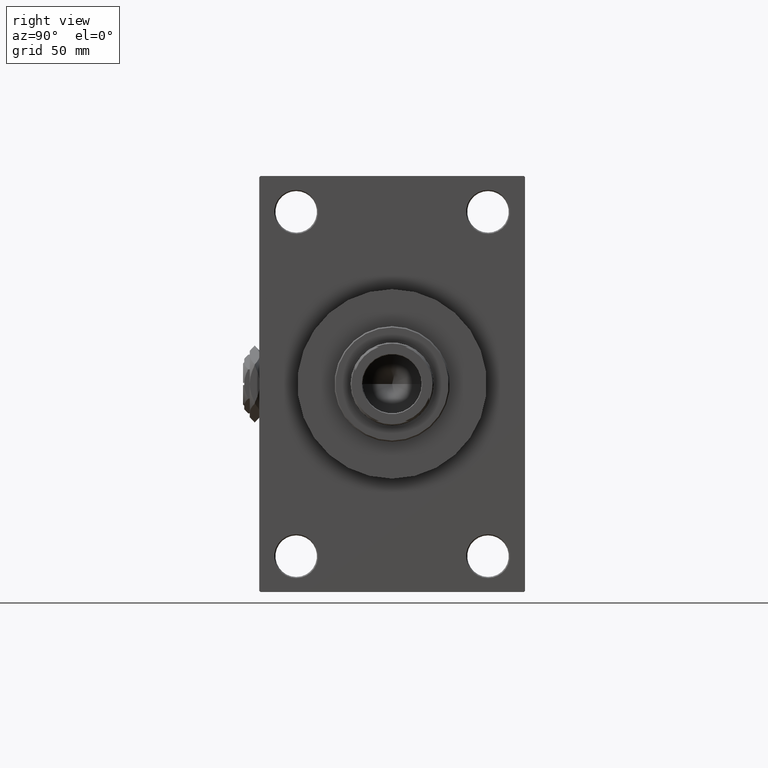
[diagram: clean part render]
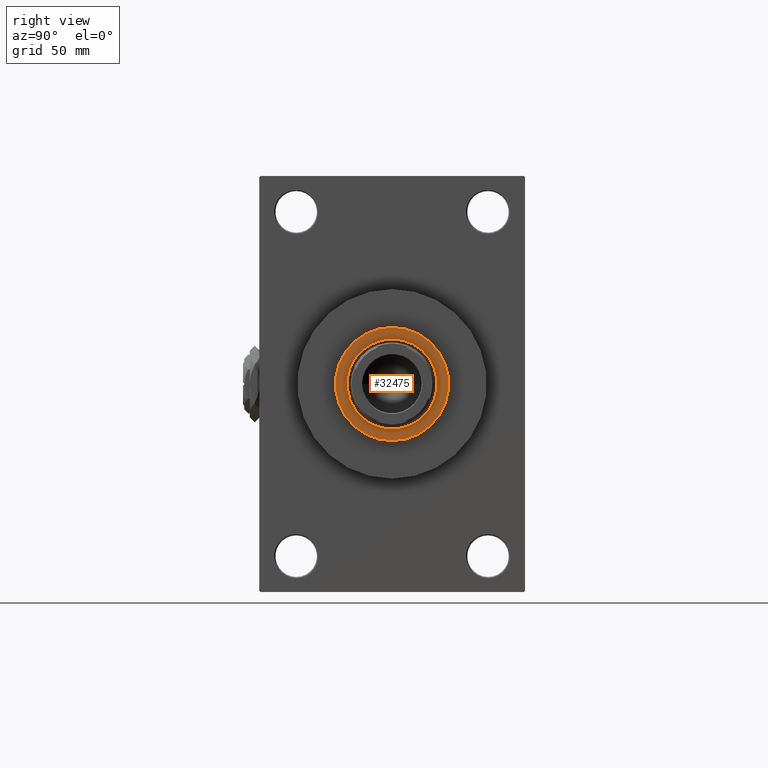
[diagram: same view with one face highlighted and labeled with its STEP entity id]
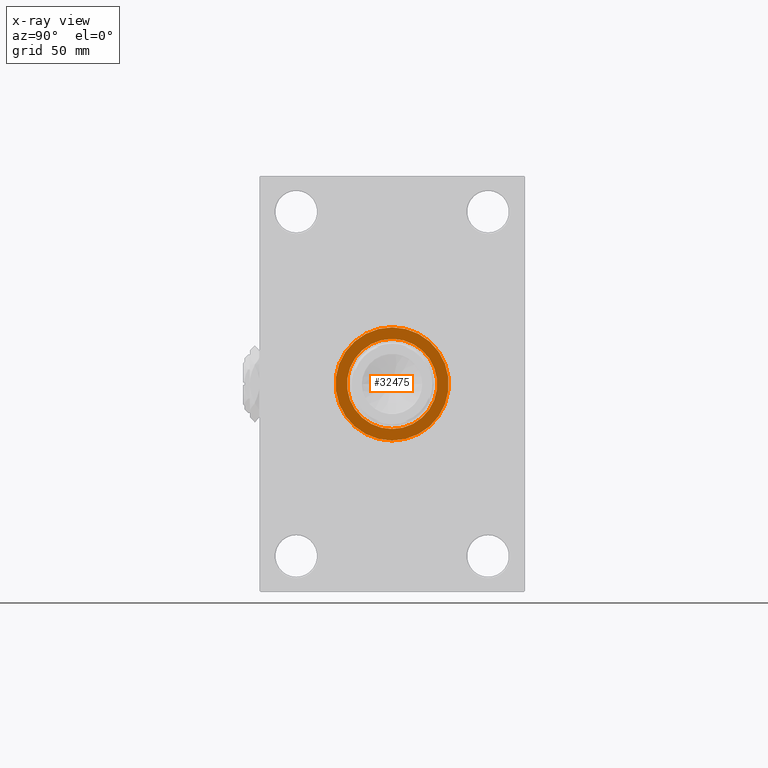
[diagram: x-ray of the same camera — body ghosted, the highlighted face saturated]
A machine part, right view. The second image highlights one B-rep face of the part: STEP entity #32475.
The next image is the same camera in x-ray: the body ghosted, the highlighted face saturated — about 0% of this face is hidden behind the body in this view.
In plain terms, the highlighted planar face has unit normal (1, -0, -0).
Its self-contained STEP definition (entity closure, byte-faithful):
#226 = EDGE_LOOP ( 'NONE', ( #5913, #16296 ) ) ;
#394 = DIRECTION ( 'NONE',  ( 0.000000000000000000, 0.000000000000000000, 1.000000000000000000 ) ) ;
#5913 = ORIENTED_EDGE ( 'NONE', *, *, #21664, .F. ) ;
#7606 = AXIS2_PLACEMENT_3D ( 'NONE', #37540, #36803, #10763 ) ;
#9124 = CARTESIAN_POINT ( 'NONE',  ( 0.000000000000000000, 0.000000000000000000, 52.25999999999999801 ) ) ;
#10434 = VERTEX_POINT ( 'NONE', #32083 ) ;
#10763 = DIRECTION ( 'NONE',  ( 1.000000000000000000, 0.000000000000000000, 0.000000000000000000 ) ) ;
#10957 = DIRECTION ( 'NONE',  ( 0.000000000000000000, 0.000000000000000000, 1.000000000000000000 ) ) ;
#13027 = FACE_BOUND ( 'NONE', #226, .T. ) ;
#13768 = AXIS2_PLACEMENT_3D ( 'NONE', #25258, #36052, #28284 ) ;
#15487 = VERTEX_POINT ( 'NONE', #18122 ) ;
#16296 = ORIENTED_EDGE ( 'NONE', *, *, #31175, .F. ) ;
#18122 = CARTESIAN_POINT ( 'NONE',  ( -24.49999999999998224, 0.000000000000000000, 52.25999999999999801 ) ) ;
#18584 = CARTESIAN_POINT ( 'NONE',  ( 19.50000000000000000, 0.000000000000000000, 52.25999999999999801 ) ) ;
#19106 = CARTESIAN_POINT ( 'NONE',  ( 24.49999999999998224, 3.031000827889698072E-15, 52.25999999999999801 ) ) ;
#19187 = CARTESIAN_POINT ( 'NONE',  ( 0.000000000000000000, 0.000000000000000000, 52.25999999999999801 ) ) ;
#19658 = VERTEX_POINT ( 'NONE', #18584 ) ;
#21015 = PLANE ( 'NONE',  #13768 ) ;
#21664 = EDGE_CURVE ( 'NONE', #19658, #10434, #31916, .T. ) ;
#23284 = AXIS2_PLACEMENT_3D ( 'NONE', #19187, #10957, #34467 ) ;
#25258 = CARTESIAN_POINT ( 'NONE',  ( 0.000000000000000000, 0.000000000000000000, 52.25999999999999801 ) ) ;
#25508 = AXIS2_PLACEMENT_3D ( 'NONE', #48818, #36599, #33570 ) ;
#28241 = ORIENTED_EDGE ( 'NONE', *, *, #34011, .T. ) ;
#28284 = DIRECTION ( 'NONE',  ( 1.000000000000000000, 0.000000000000000000, -0.000000000000000000 ) ) ;
#29193 = CIRCLE ( 'NONE', #7606, 24.49999999999998224 ) ;
#29680 = CIRCLE ( 'NONE', #48865, 19.50000000000000000 ) ;
#31175 = EDGE_CURVE ( 'NONE', #10434, #19658, #29680, .T. ) ;
#31916 = CIRCLE ( 'NONE', #25508, 19.50000000000000000 ) ;
#32083 = CARTESIAN_POINT ( 'NONE',  ( -19.50000000000000000, 2.388061258337338939E-15, 52.25999999999999801 ) ) ;
#32475 = ADVANCED_FACE ( 'NONE', ( #13027, #47793 ), #21015, .T. ) ;
#33570 = DIRECTION ( 'NONE',  ( 1.000000000000000000, 0.000000000000000000, 0.000000000000000000 ) ) ;
#34011 = EDGE_CURVE ( 'NONE', #15487, #44049, #48051, .T. ) ;
#34467 = DIRECTION ( 'NONE',  ( 1.000000000000000000, 0.000000000000000000, 0.000000000000000000 ) ) ;
#36052 = DIRECTION ( 'NONE',  ( 0.000000000000000000, 0.000000000000000000, 1.000000000000000000 ) ) ;
#36599 = DIRECTION ( 'NONE',  ( 0.000000000000000000, 0.000000000000000000, 1.000000000000000000 ) ) ;
#36803 = DIRECTION ( 'NONE',  ( 0.000000000000000000, 0.000000000000000000, 1.000000000000000000 ) ) ;
#37178 = EDGE_LOOP ( 'NONE', ( #28241, #43447 ) ) ;
#37540 = CARTESIAN_POINT ( 'NONE',  ( 0.000000000000000000, 0.000000000000000000, 52.25999999999999801 ) ) ;
#42877 = EDGE_CURVE ( 'NONE', #44049, #15487, #29193, .T. ) ;
#43164 = DIRECTION ( 'NONE',  ( 1.000000000000000000, 0.000000000000000000, 0.000000000000000000 ) ) ;
#43447 = ORIENTED_EDGE ( 'NONE', *, *, #42877, .T. ) ;
#44049 = VERTEX_POINT ( 'NONE', #19106 ) ;
#47793 = FACE_OUTER_BOUND ( 'NONE', #37178, .T. ) ;
#48051 = CIRCLE ( 'NONE', #23284, 24.49999999999998224 ) ;
#48818 = CARTESIAN_POINT ( 'NONE',  ( 0.000000000000000000, 0.000000000000000000, 52.25999999999999801 ) ) ;
#48865 = AXIS2_PLACEMENT_3D ( 'NONE', #9124, #394, #43164 ) ;